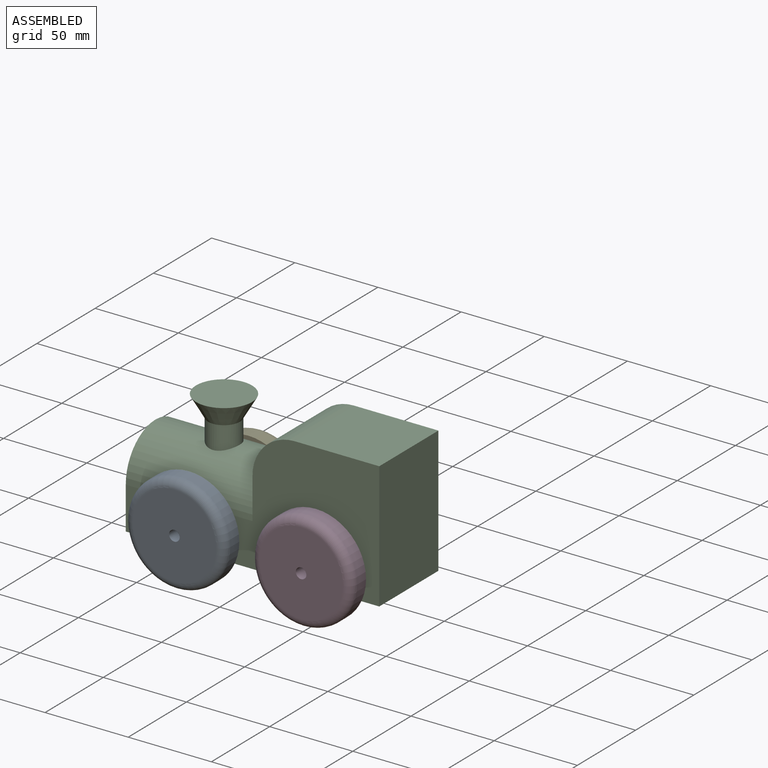
[diagram: assembled view]
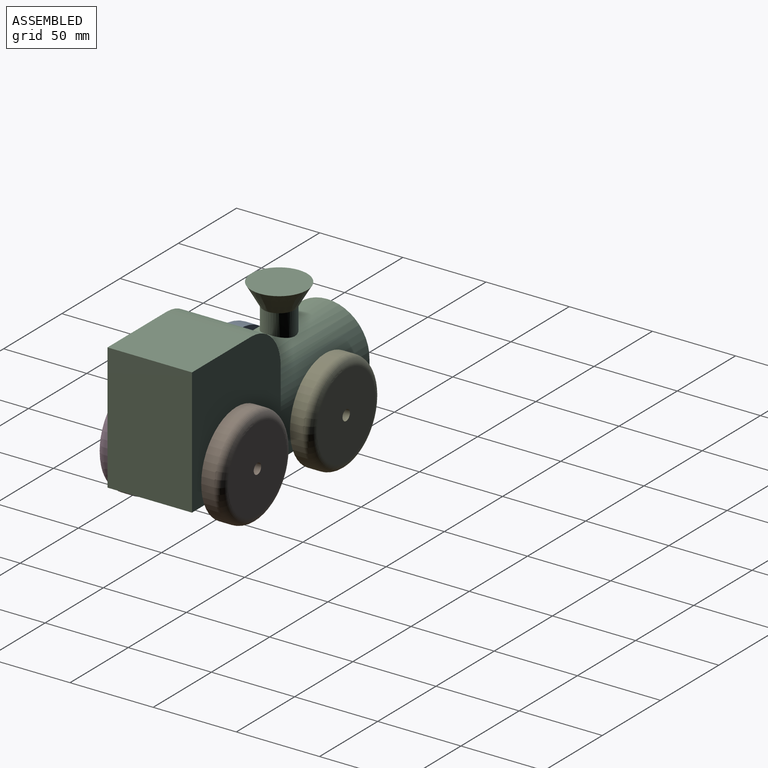
[diagram: assembled view, second angle]
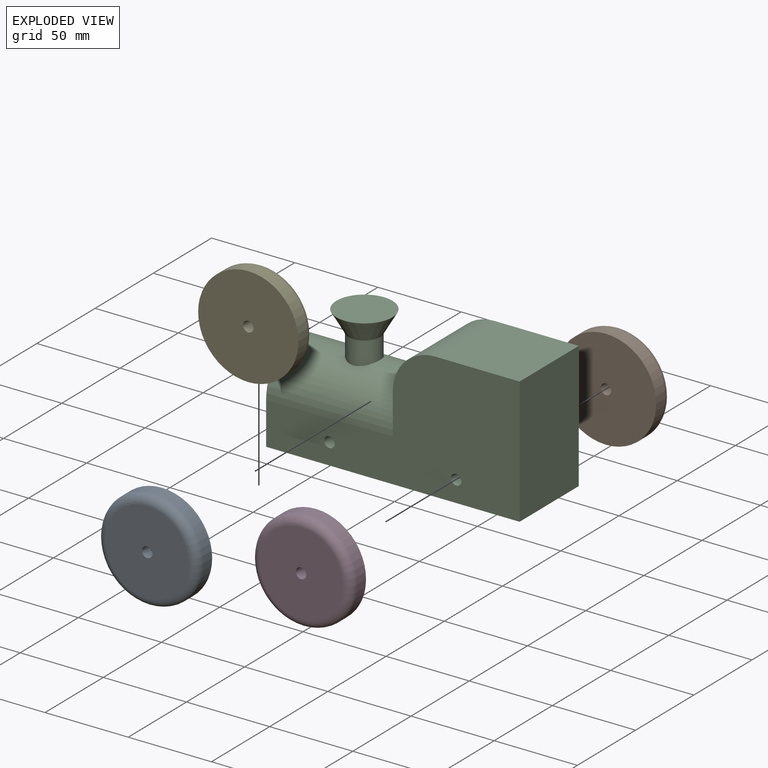
[diagram: exploded view]
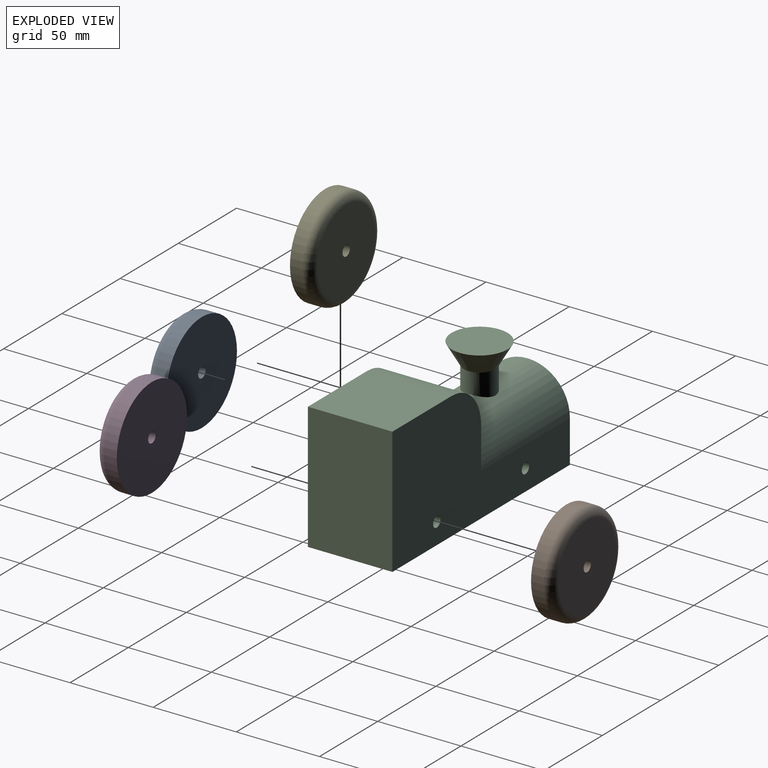
[diagram: exploded view, second angle]
ASSEMBLY  parts=5 mates=4
PART A: 5 faces, bbox 65.3x12.7x65.3 mm
  f0: cylinder r=3.17mm len=12.7mm, axis (0,1,0), area 253.4mm2, adj f2,f3
  f1: cylinder r=30.16mm len=60.33mm, axis (0,1,0), area 1444.1mm2, adj f3,f4
  f2: plane 50.17x50.17mm, normal (0,-1,0), area 1944.8mm2, adj f0,f4
  f3: plane 60.33x60.33mm, normal (0,1,0), area 2826.5mm2, adj f0,f1
  f4: torus R=25.08mm, axis (0,-1,0), area 1419.7mm2, adj f1,f2
PART B: same geometry as A
PART C: 15 faces, bbox 152.4x50.8x76.2 mm
  f0: plane 33.71x33.71mm, normal (0,0,1), area 892.7mm2, adj f1
  f1: cone r=16.86mm half-angle=30deg, axis (0,0,1), area 1215.4mm2, adj f0,f2
  f2: cylinder r=9.53mm len=19.05mm, axis (0,0,1), area 741.6mm2, adj f1,f3
  f3: cylinder r=25.4mm len=76.2mm, axis (-1,0,0), area 5837.6mm2, adj f2,f9,f10,f11,f12,f13,f14
  f4: plane 76.2x50.8mm, normal (1,0,0), area 3871mm2, adj f5,f8,f11,f12
  f5: plane 152.4x50.8mm, normal (0,0,-1), area 7741.9mm2, adj f4,f11,f12,f14
  f6: cylinder r=3.17mm len=50.8mm, axis (0,1,0), area 1013.4mm2, adj f11,f12
  f7: cylinder r=3.17mm len=50.8mm, axis (0,1,0), area 1013.4mm2, adj f11,f12
  f8: plane 50.8x50.8mm, normal (0,0,1), area 2580.6mm2, adj f4,f9,f11,f12
  f9: cylinder r=25.4mm len=50.8mm, axis (0,1,0), area 2026.8mm2, adj f3,f8,f10,f11,f12,f13
  f10: plane 24.82x21.48mm, normal (-1,0,0), area 131.3mm2, adj f3,f9,f11
  f11: plane 152.4x76.2mm, normal (0,-1,0), area 7540.1mm2, adj f3,f4,f5,f6,f7,f8,f9,f10
  f12: plane 152.4x76.2mm, normal (0,1,0), area 7540.1mm2, adj f3,f4,f5,f6,f7,f8,f9,f13
  f13: plane 24.82x21.48mm, normal (-1,0,0), area 131.3mm2, adj f3,f9,f12
  f14: plane 51.11x50.8mm, normal (-1,0,0), area 2319.5mm2, adj f3,f5,f11,f12
PART D: same geometry as A
PART E: same geometry as A
PLACE A t=(-75.27,-46.52,-15.37)mm
PLACE B rot(axis=(1,0,0),180deg) t=(0.93,16.98,-15.37)mm
PLACE C t=(-37.17,-14.77,10.03)mm
PLACE D t=(0.93,-46.52,-15.37)mm
PLACE E rot(axis=(0,0,1),180deg) t=(-75.27,16.98,-15.37)mm
MATE revolute E.f0 <-> C.f6  axis (0,-1,0) through (-75.27,10.63,-15.37)mm
MATE revolute A.f0 <-> C.f6  axis (0,1,0) through (-75.27,-40.17,-15.37)mm
MATE revolute B.f0 <-> C.f7  axis (0,-1,0) through (0.93,10.63,-15.37)mm
MATE revolute D.f0 <-> C.f7  axis (0,1,0) through (0.93,-40.17,-15.37)mm
